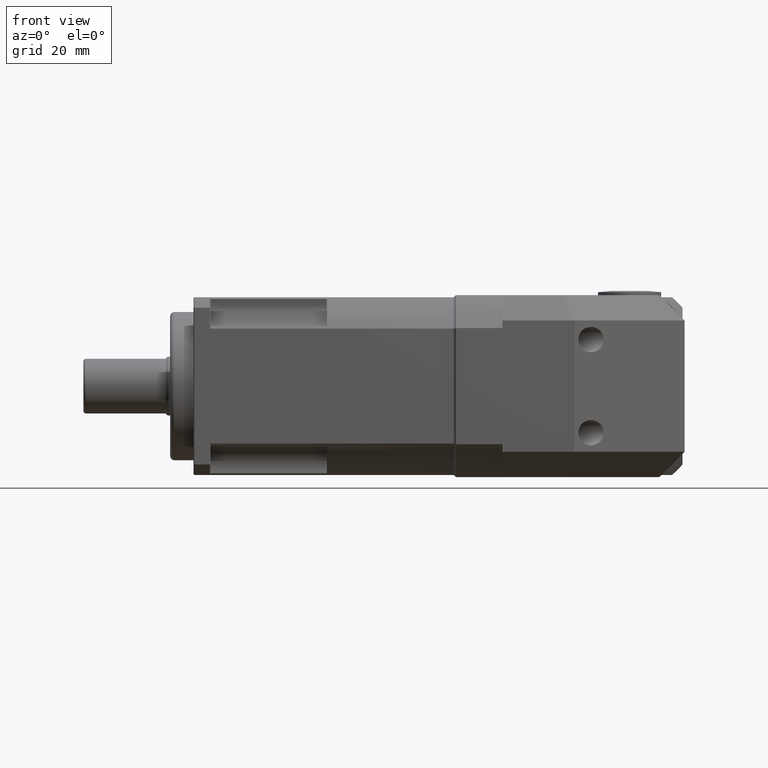
[diagram: clean part render]
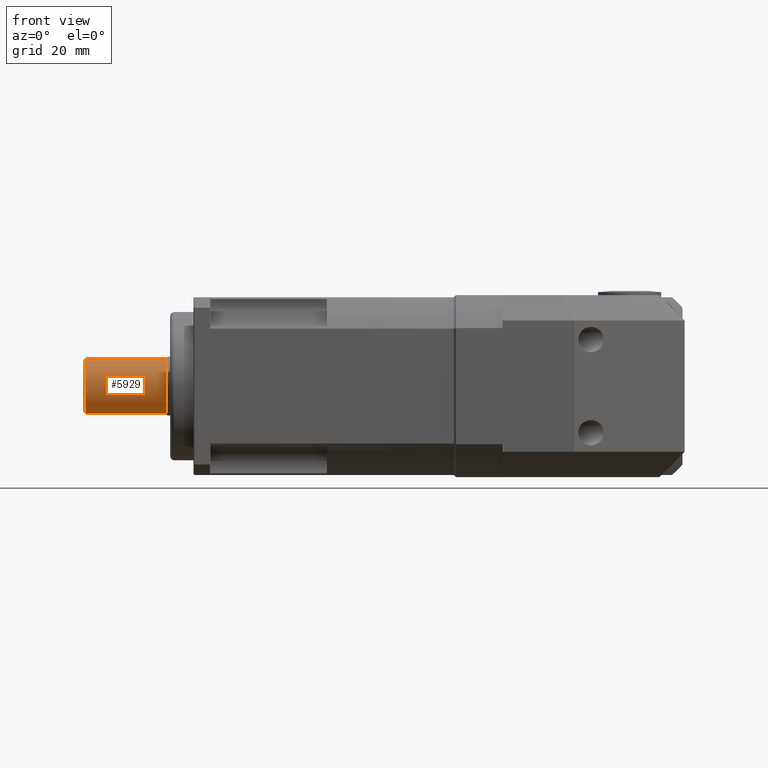
[diagram: same view with one face highlighted and labeled with its STEP entity id]
A machine part, front view. The second image highlights one B-rep face of the part: STEP entity #5929.
In plain terms, the highlighted cylindrical surface (bore or boss wall) has radius 6.5 mm, axis along (1, 0, 0).
Its self-contained STEP definition (entity closure, byte-faithful):
#951=FACE_BOUND('',#1734,.T.);
#1104=CYLINDRICAL_SURFACE('',#6459,6.5);
#1270=FACE_OUTER_BOUND('',#1733,.T.);
#1733=EDGE_LOOP('',(#4082));
#1734=EDGE_LOOP('',(#4083));
#2272=CIRCLE('',#6453,6.5);
#2274=CIRCLE('',#6456,6.5);
#2604=VERTEX_POINT('',#9229);
#2606=VERTEX_POINT('',#9234);
#3181=EDGE_CURVE('',#2604,#2604,#2272,.T.);
#3183=EDGE_CURVE('',#2606,#2606,#2274,.T.);
#4082=ORIENTED_EDGE('',*,*,#3181,.F.);
#4083=ORIENTED_EDGE('',*,*,#3183,.F.);
#5929=ADVANCED_FACE('',(#1270,#951),#1104,.T.);
#6453=AXIS2_PLACEMENT_3D('',#9230,#7408,#7409);
#6456=AXIS2_PLACEMENT_3D('',#9235,#7414,#7415);
#6459=AXIS2_PLACEMENT_3D('',#9239,#7420,#7421);
#7408=DIRECTION('center_axis',(1.,1.83697019872103E-16,2.0755946391953E-16));
#7409=DIRECTION('ref_axis',(2.0755946391953E-16,1.28708981429581E-31,-1.));
#7414=DIRECTION('center_axis',(-1.,-1.83697019872103E-16,-2.0755946391953E-16));
#7415=DIRECTION('ref_axis',(1.81478763640651E-16,-1.,1.83697019872103E-16));
#7420=DIRECTION('center_axis',(1.,1.83697019872103E-16,2.0755946391953E-16));
#7421=DIRECTION('ref_axis',(-3.74070962741311E-47,1.,1.28708981429581E-31));
#9229=CARTESIAN_POINT('',(-40.3082135047398,12.5526784650906,-4.5713600451766));
#9230=CARTESIAN_POINT('Origin',(-40.3082135047398,6.05267846509056,-4.5713600451766));
#9234=CARTESIAN_POINT('',(-59.2082135047398,12.5526784650906,-4.57136004517661));
#9235=CARTESIAN_POINT('Origin',(-59.2082135047398,6.05267846509055,-4.57136004517661));
#9239=CARTESIAN_POINT('Origin',(-50.0582135047398,6.05267846509055,-4.5713600451766));